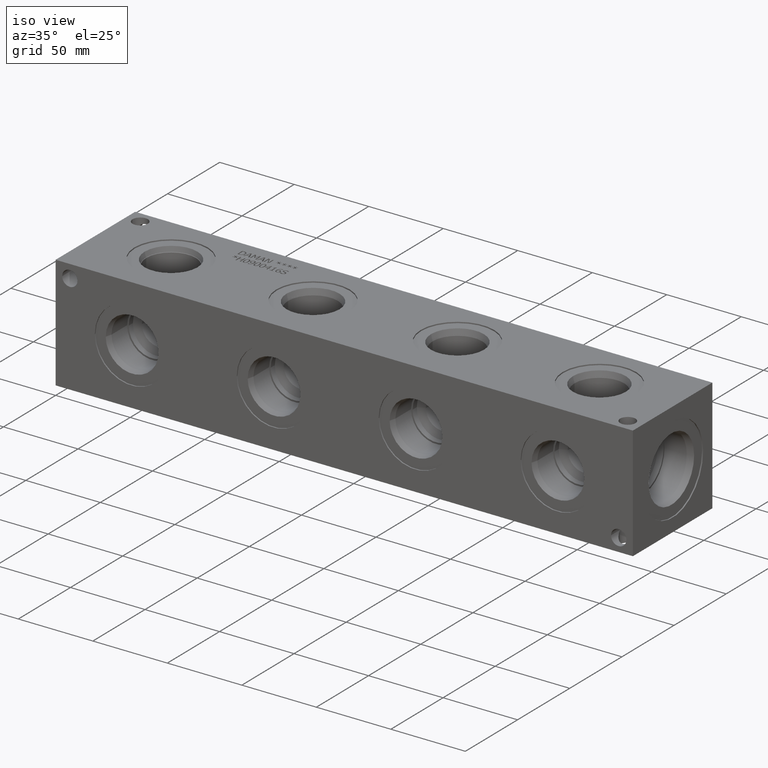
[diagram: clean part render]
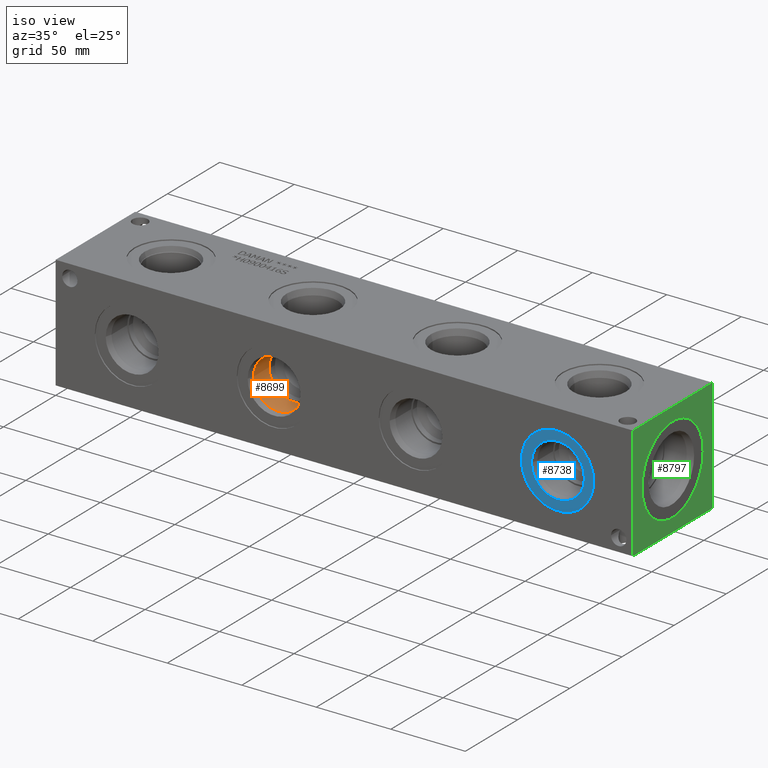
[diagram: same view with three faces highlighted in distinct colors, each labeled with its STEP entity id]
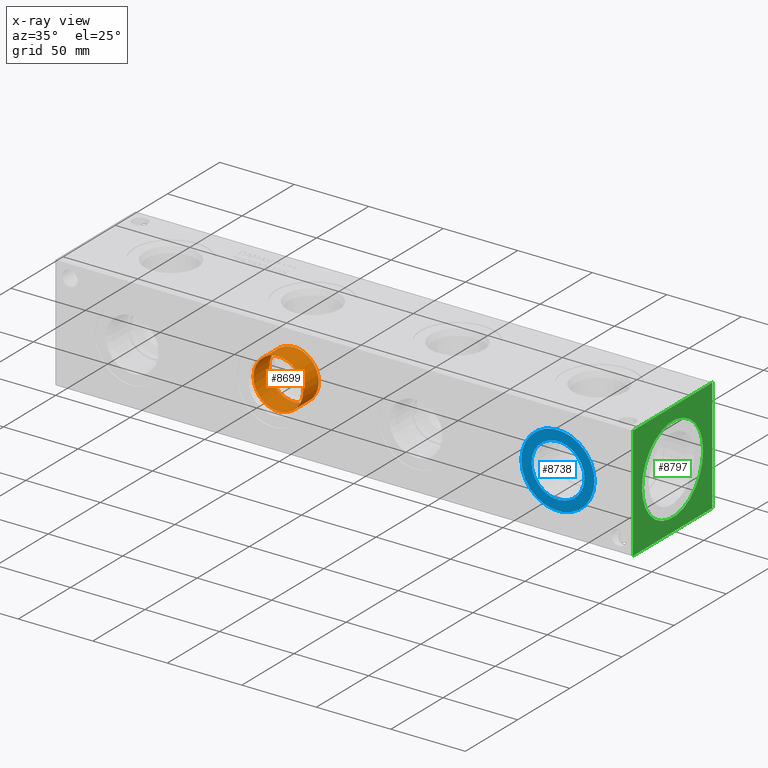
[diagram: x-ray of the same camera — body ghosted, the three highlighted faces saturated]
A machine part, iso view with three faces highlighted in distinct colors.
The next image is the same camera in x-ray (body ghosted, the three faces saturated) — at least one of them is partly hidden behind the body in this view.
Their STEP definitions:

[orange] entity #8699 — the highlighted cylindrical surface (bore or boss wall) has radius 16.6751 mm, axis along (0, -1, 0).
#53=CYLINDRICAL_SURFACE('',#9156,16.6751);
#224=CIRCLE('',#9154,16.6751);
#225=CIRCLE('',#9155,16.6751);
#226=CIRCLE('',#9157,16.6751);
#1113=FACE_OUTER_BOUND('',#1609,.T.);
#1609=EDGE_LOOP('',(#7272,#7273,#7274,#7275,#7276));
#2426=LINE('',#14866,#3196);
#3196=VECTOR('',#10772,16.6751);
#3952=VERTEX_POINT('',#14859);
#3953=VERTEX_POINT('',#14860);
#3954=VERTEX_POINT('',#14864);
#5098=EDGE_CURVE('',#3952,#3953,#224,.T.);
#5099=EDGE_CURVE('',#3953,#3952,#225,.T.);
#5100=EDGE_CURVE('',#3954,#3954,#226,.T.);
#5101=EDGE_CURVE('',#3954,#3953,#2426,.T.);
#7272=ORIENTED_EDGE('',*,*,#5100,.F.);
#7273=ORIENTED_EDGE('',*,*,#5101,.T.);
#7274=ORIENTED_EDGE('',*,*,#5098,.F.);
#7275=ORIENTED_EDGE('',*,*,#5099,.F.);
#7276=ORIENTED_EDGE('',*,*,#5101,.F.);
#8699=ADVANCED_FACE('',(#1113),#53,.F.);
#9154=AXIS2_PLACEMENT_3D('',#14861,#10764,#10765);
#9155=AXIS2_PLACEMENT_3D('',#14862,#10766,#10767);
#9156=AXIS2_PLACEMENT_3D('',#14863,#10768,#10769);
#9157=AXIS2_PLACEMENT_3D('',#14865,#10770,#10771);
#10764=DIRECTION('center_axis',(0.,-1.,0.));
#10765=DIRECTION('ref_axis',(1.,0.,0.));
#10766=DIRECTION('center_axis',(0.,-1.,0.));
#10767=DIRECTION('ref_axis',(1.,0.,0.));
#10768=DIRECTION('center_axis',(0.,-1.,0.));
#10769=DIRECTION('ref_axis',(1.,0.,0.));
#10770=DIRECTION('center_axis',(0.,1.,0.));
#10771=DIRECTION('ref_axis',(1.,0.,0.));
#10772=DIRECTION('',(0.,1.,0.));
#14859=CARTESIAN_POINT('',(162.7251,19.8374,38.1));
#14860=CARTESIAN_POINT('',(129.3749,19.8374,38.1));
#14861=CARTESIAN_POINT('Origin',(146.05,19.8374,38.1));
#14862=CARTESIAN_POINT('Origin',(146.05,19.8374,38.1));
#14863=CARTESIAN_POINT('Origin',(146.05,9.9187,38.1));
#14864=CARTESIAN_POINT('',(129.3749,4.8236788467706,38.1));
#14865=CARTESIAN_POINT('Origin',(146.05,4.8236788467706,38.1));
#14866=CARTESIAN_POINT('',(129.3749,9.9187,38.1));

[blue] entity #8738 — the highlighted planar face has unit normal (0, -1, 0).
#279=CIRCLE('',#9257,24.5618);
#280=CIRCLE('',#9258,24.5618);
#281=CIRCLE('',#9259,17.7546);
#399=FACE_BOUND('',#1653,.T.);
#1152=FACE_OUTER_BOUND('',#1652,.T.);
#1652=EDGE_LOOP('',(#7479,#7480));
#1653=EDGE_LOOP('',(#7481));
#4030=VERTEX_POINT('',#15344);
#4031=VERTEX_POINT('',#15345);
#4032=VERTEX_POINT('',#15348);
#5214=EDGE_CURVE('',#4030,#4031,#279,.T.);
#5215=EDGE_CURVE('',#4031,#4030,#280,.T.);
#5216=EDGE_CURVE('',#4032,#4032,#281,.T.);
#7479=ORIENTED_EDGE('',*,*,#5214,.T.);
#7480=ORIENTED_EDGE('',*,*,#5215,.T.);
#7481=ORIENTED_EDGE('',*,*,#5216,.F.);
#8027=PLANE('',#9256);
#8738=ADVANCED_FACE('',(#1152,#399),#8027,.T.);
#9256=AXIS2_PLACEMENT_3D('',#15343,#11002,#11003);
#9257=AXIS2_PLACEMENT_3D('',#15346,#11004,#11005);
#9258=AXIS2_PLACEMENT_3D('',#15347,#11006,#11007);
#9259=AXIS2_PLACEMENT_3D('',#15349,#11008,#11009);
#11002=DIRECTION('center_axis',(0.,-1.,0.));
#11003=DIRECTION('ref_axis',(1.,0.,0.));
#11004=DIRECTION('center_axis',(0.,-1.,0.));
#11005=DIRECTION('ref_axis',(1.,0.,0.));
#11006=DIRECTION('center_axis',(0.,-1.,0.));
#11007=DIRECTION('ref_axis',(1.,0.,0.));
#11008=DIRECTION('center_axis',(0.,-1.,0.));
#11009=DIRECTION('ref_axis',(1.,0.,0.));
#15343=CARTESIAN_POINT('Origin',(336.55,0.7874,38.1));
#15344=CARTESIAN_POINT('',(361.1118,0.7874,38.1));
#15345=CARTESIAN_POINT('',(311.9882,0.7874,38.1));
#15346=CARTESIAN_POINT('Origin',(336.55,0.7874,38.1));
#15347=CARTESIAN_POINT('Origin',(336.55,0.7874,38.1));
#15348=CARTESIAN_POINT('',(318.7954,0.7874,38.1));
#15349=CARTESIAN_POINT('Origin',(336.55,0.7874,38.1));

[green] entity #8797 — the highlighted planar face has unit normal (1, 0, 0).
#176=CIRCLE('',#9066,29.2862);
#177=CIRCLE('',#9067,29.2862);
#411=FACE_BOUND('',#1724,.T.);
#1211=FACE_OUTER_BOUND('',#1723,.T.);
#1723=EDGE_LOOP('',(#7772,#7773,#7774,#7775));
#1724=EDGE_LOOP('',(#7776,#7777));
#2014=LINE('',#13441,#2784);
#2502=LINE('',#15589,#3272);
#2503=LINE('',#15592,#3273);
#2504=LINE('',#15593,#3274);
#2784=VECTOR('',#9820,10.);
#3272=VECTOR('',#11312,10.);
#3273=VECTOR('',#11315,10.);
#3274=VECTOR('',#11316,10.);
#3583=VERTEX_POINT('',#13438);
#3584=VERTEX_POINT('',#13440);
#3887=VERTEX_POINT('',#14579);
#3888=VERTEX_POINT('',#14580);
#4099=VERTEX_POINT('',#15587);
#4100=VERTEX_POINT('',#15591);
#4561=EDGE_CURVE('',#3583,#3584,#2014,.T.);
#5003=EDGE_CURVE('',#3887,#3888,#176,.T.);
#5004=EDGE_CURVE('',#3888,#3887,#177,.T.);
#5331=EDGE_CURVE('',#4099,#3584,#2502,.T.);
#5332=EDGE_CURVE('',#4100,#4099,#2503,.T.);
#5333=EDGE_CURVE('',#4100,#3583,#2504,.T.);
#7772=ORIENTED_EDGE('',*,*,#5332,.T.);
#7773=ORIENTED_EDGE('',*,*,#5331,.T.);
#7774=ORIENTED_EDGE('',*,*,#4561,.F.);
#7775=ORIENTED_EDGE('',*,*,#5333,.F.);
#7776=ORIENTED_EDGE('',*,*,#5003,.T.);
#7777=ORIENTED_EDGE('',*,*,#5004,.T.);
#8038=PLANE('',#9390);
#8797=ADVANCED_FACE('',(#1211,#411),#8038,.T.);
#9066=AXIS2_PLACEMENT_3D('',#14581,#10564,#10565);
#9067=AXIS2_PLACEMENT_3D('',#14582,#10566,#10567);
#9390=AXIS2_PLACEMENT_3D('',#15590,#11313,#11314);
#9820=DIRECTION('',(0.,1.,0.));
#10564=DIRECTION('center_axis',(-1.,0.,0.));
#10565=DIRECTION('ref_axis',(0.,1.,0.));
#10566=DIRECTION('center_axis',(-1.,0.,0.));
#10567=DIRECTION('ref_axis',(0.,1.,0.));
#11312=DIRECTION('',(0.,0.,1.));
#11313=DIRECTION('center_axis',(1.,0.,0.));
#11314=DIRECTION('ref_axis',(0.,1.,0.));
#11315=DIRECTION('',(0.,1.,0.));
#11316=DIRECTION('',(0.,0.,1.));
#13438=CARTESIAN_POINT('',(387.35,0.,76.2));
#13440=CARTESIAN_POINT('',(387.35,76.2,76.2));
#13441=CARTESIAN_POINT('',(387.35,0.,76.2));
#14579=CARTESIAN_POINT('',(387.35,67.3862,38.1));
#14580=CARTESIAN_POINT('',(387.35,8.8138,38.1));
#14581=CARTESIAN_POINT('Origin',(387.35,38.1,38.1));
#14582=CARTESIAN_POINT('Origin',(387.35,38.1,38.1));
#15587=CARTESIAN_POINT('',(387.35,76.2,0.));
#15589=CARTESIAN_POINT('',(387.35,76.2,0.));
#15590=CARTESIAN_POINT('Origin',(387.35,0.,0.));
#15591=CARTESIAN_POINT('',(387.35,0.,0.));
#15592=CARTESIAN_POINT('',(387.35,0.,0.));
#15593=CARTESIAN_POINT('',(387.35,0.,0.));